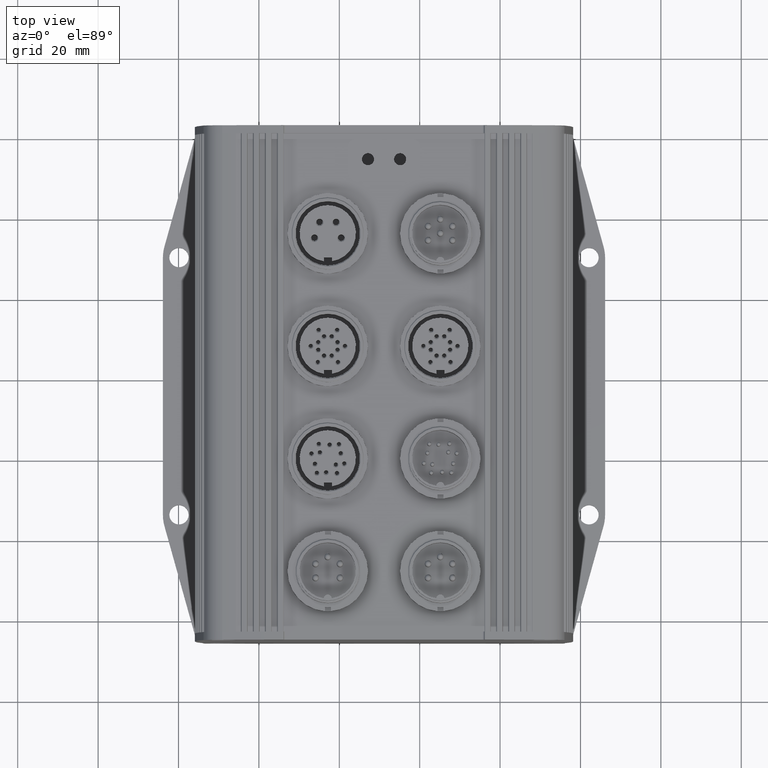
[diagram: clean part render]
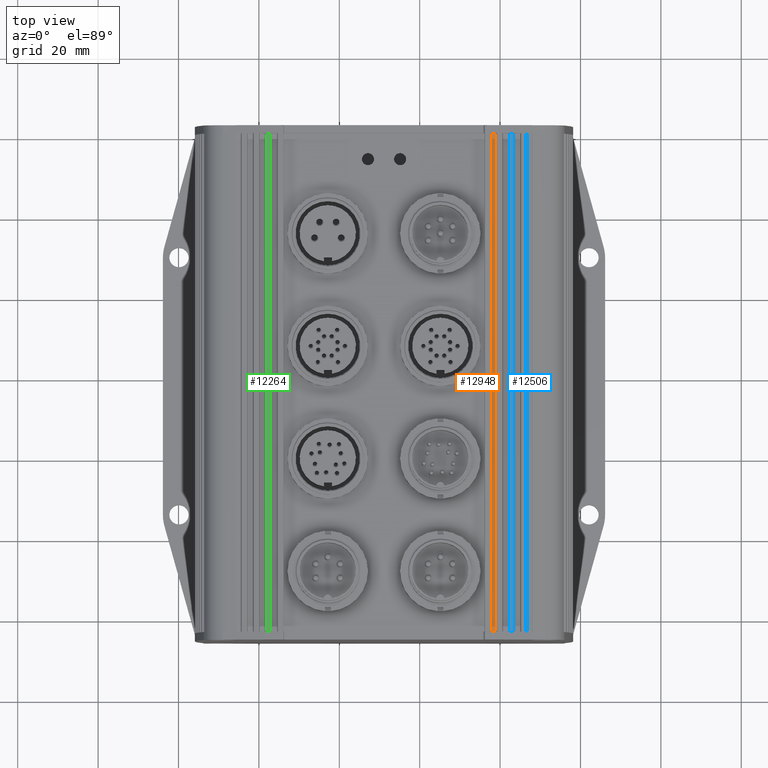
[diagram: same view with three faces highlighted in distinct colors, each labeled with its STEP entity id]
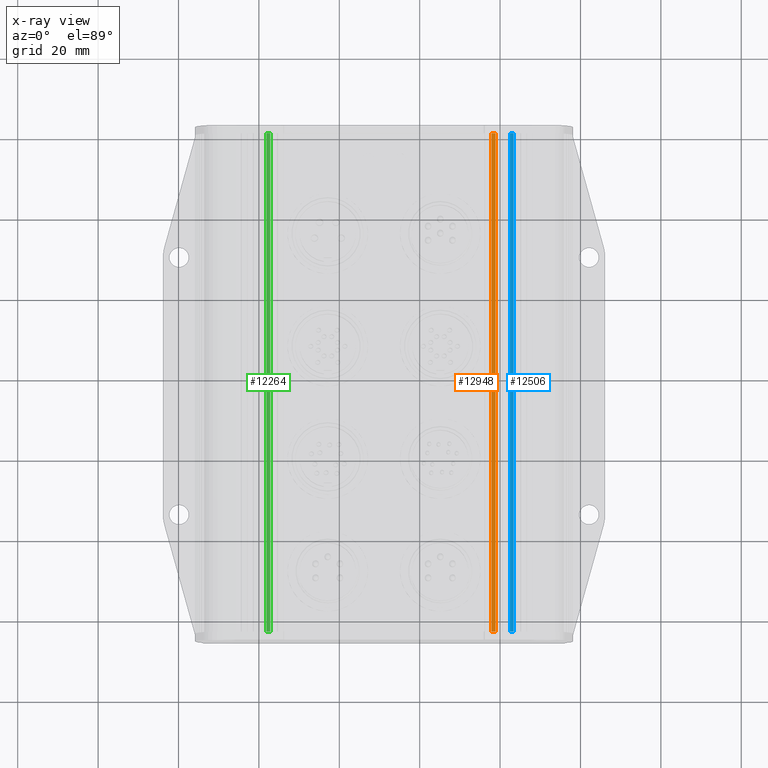
[diagram: x-ray of the same camera — body ghosted, the three highlighted faces saturated]
A machine part, top view with three faces highlighted in distinct colors.
The next image is the same camera in x-ray (body ghosted, the three faces saturated) — at least one of them is partly hidden behind the body in this view.
Their STEP definitions:

[orange] entity #12948 — the highlighted planar face has unit normal (0, 0, -1).
#4022=CARTESIAN_POINT('',(26.750000000000007,75.000000000000028,28.549533612553898));
#4023=VERTEX_POINT('',#4022);
#4031=CARTESIAN_POINT('',(27.750000000000007,75.000000000000028,28.549533612553898));
#4032=VERTEX_POINT('',#4031);
#4033=CARTESIAN_POINT('',(26.750000000000007,75.000000000000028,28.549533612553898));
#4034=DIRECTION('',(1.0,0.0,0.0));
#4035=VECTOR('',#4034,1.0);
#4036=LINE('',#4033,#4035);
#4037=EDGE_CURVE('',#4023,#4032,#4036,.T.);
#7054=CARTESIAN_POINT('',(27.750000000000007,-48.999999999999972,28.549533612553898));
#7055=VERTEX_POINT('',#7054);
#7063=CARTESIAN_POINT('',(26.750000000000007,-48.999999999999972,28.549533612553898));
#7064=VERTEX_POINT('',#7063);
#7065=CARTESIAN_POINT('',(27.750000000000007,-48.999999999999972,28.549533612553898));
#7066=DIRECTION('',(-1.0,0.0,0.0));
#7067=VECTOR('',#7066,1.0);
#7068=LINE('',#7065,#7067);
#7069=EDGE_CURVE('',#7055,#7064,#7068,.T.);
#12904=CARTESIAN_POINT('',(27.750000000000007,-48.999999999999972,28.549533612553898));
#12905=DIRECTION('',(0.0,1.0,0.0));
#12906=VECTOR('',#12905,124.0);
#12907=LINE('',#12904,#12906);
#12908=EDGE_CURVE('',#7055,#4032,#12907,.T.);
#12932=CARTESIAN_POINT('',(26.750000000000007,-48.999999999999972,28.549533612553898));
#12933=DIRECTION('',(0.0,0.0,-1.0));
#12934=DIRECTION('',(-1.0,0.0,0.0));
#12935=AXIS2_PLACEMENT_3D('',#12932,#12933,#12934);
#12936=PLANE('',#12935);
#12937=ORIENTED_EDGE('',*,*,#4037,.F.);
#12938=CARTESIAN_POINT('',(26.750000000000007,-48.999999999999972,28.549533612553898));
#12939=DIRECTION('',(0.0,1.0,0.0));
#12940=VECTOR('',#12939,124.0);
#12941=LINE('',#12938,#12940);
#12942=EDGE_CURVE('',#7064,#4023,#12941,.T.);
#12943=ORIENTED_EDGE('',*,*,#12942,.F.);
#12944=ORIENTED_EDGE('',*,*,#7069,.F.);
#12945=ORIENTED_EDGE('',*,*,#12908,.T.);
#12946=EDGE_LOOP('',(#12937,#12943,#12944,#12945));
#12947=FACE_OUTER_BOUND('',#12946,.T.);
#12948=ADVANCED_FACE('',(#12947),#12936,.F.);

[blue] entity #12506 — the highlighted cylindrical surface (partial cylindrical patch) has radius 200 mm, axis along (0, -1, 0).
#4125=CARTESIAN_POINT('',(31.289111389236552,75.0,29.586850361749271));
#4126=VERTEX_POINT('',#4125);
#4134=CARTESIAN_POINT('',(32.290362953692124,75.0,29.425652888212028));
#4135=VERTEX_POINT('',#4134);
#4136=CARTESIAN_POINT('',(0.0,75.0,-167.950466387446080));
#4137=DIRECTION('',(0.0,1.0,0.0));
#4138=DIRECTION('',(1.0,0.0,0.0));
#4139=AXIS2_PLACEMENT_3D('',#4136,#4137,#4138);
#4140=CIRCLE('',#4139,200.0);
#4141=EDGE_CURVE('',#4126,#4135,#4140,.T.);
#6950=CARTESIAN_POINT('',(32.290362953692124,-49.0,29.425652888212028));
#6951=VERTEX_POINT('',#6950);
#6959=CARTESIAN_POINT('',(31.289111389236552,-49.0,29.586850361749271));
#6960=VERTEX_POINT('',#6959);
#6961=CARTESIAN_POINT('',(0.0,-49.0,-167.950466387446080));
#6962=DIRECTION('',(0.0,1.0,0.0));
#6963=DIRECTION('',(1.0,0.0,0.0));
#6964=AXIS2_PLACEMENT_3D('',#6961,#6962,#6963);
#6965=CIRCLE('',#6964,200.0);
#6966=EDGE_CURVE('',#6960,#6951,#6965,.T.);
#12474=CARTESIAN_POINT('',(32.290362953692124,75.0,29.425652888212028));
#12475=DIRECTION('',(0.0,-1.0,0.0));
#12476=VECTOR('',#12475,124.0);
#12477=LINE('',#12474,#12476);
#12478=EDGE_CURVE('',#4135,#6951,#12477,.T.);
#12490=CARTESIAN_POINT('',(0.0,75.0,-167.950466387446080));
#12491=DIRECTION('',(0.0,-1.0,0.0));
#12492=DIRECTION('',(1.0,0.0,0.0));
#12493=AXIS2_PLACEMENT_3D('',#12490,#12491,#12492);
#12494=CYLINDRICAL_SURFACE('',#12493,200.0);
#12495=ORIENTED_EDGE('',*,*,#12478,.F.);
#12496=ORIENTED_EDGE('',*,*,#4141,.F.);
#12497=CARTESIAN_POINT('',(31.289111389236552,-49.0,29.586850361749271));
#12498=DIRECTION('',(0.0,1.0,0.0));
#12499=VECTOR('',#12498,124.0);
#12500=LINE('',#12497,#12499);
#12501=EDGE_CURVE('',#6960,#4126,#12500,.T.);
#12502=ORIENTED_EDGE('',*,*,#12501,.F.);
#12503=ORIENTED_EDGE('',*,*,#6966,.T.);
#12504=EDGE_LOOP('',(#12495,#12496,#12502,#12503));
#12505=FACE_OUTER_BOUND('',#12504,.T.);
#12506=ADVANCED_FACE('',(#12505),#12494,.T.);

[green] entity #12264 — the highlighted cylindrical surface (partial cylindrical patch) has radius 200 mm, axis along (0, -1, 0).
#3867=CARTESIAN_POINT('',(-29.286608260325401,75.0,29.893650473799624));
#3868=VERTEX_POINT('',#3867);
#3876=CARTESIAN_POINT('',(-28.285356695869819,75.0,30.039277277692833));
#3877=VERTEX_POINT('',#3876);
#3878=CARTESIAN_POINT('',(0.0,75.0,-167.950466387446080));
#3879=DIRECTION('',(0.0,1.0,0.0));
#3880=DIRECTION('',(1.0,0.0,0.0));
#3881=AXIS2_PLACEMENT_3D('',#3878,#3879,#3880);
#3882=CIRCLE('',#3881,200.0);
#3883=EDGE_CURVE('',#3868,#3877,#3882,.T.);
#7208=CARTESIAN_POINT('',(-28.285356695869819,-49.0,30.039277277692833));
#7209=VERTEX_POINT('',#7208);
#7217=CARTESIAN_POINT('',(-29.286608260325401,-49.0,29.893650473799624));
#7218=VERTEX_POINT('',#7217);
#7219=CARTESIAN_POINT('',(0.0,-49.0,-167.950466387446080));
#7220=DIRECTION('',(0.0,1.0,0.0));
#7221=DIRECTION('',(1.0,0.0,0.0));
#7222=AXIS2_PLACEMENT_3D('',#7219,#7220,#7221);
#7223=CIRCLE('',#7222,200.0);
#7224=EDGE_CURVE('',#7218,#7209,#7223,.T.);
#12232=CARTESIAN_POINT('',(-28.285356695869819,75.0,30.039277277692833));
#12233=DIRECTION('',(0.0,-1.0,0.0));
#12234=VECTOR('',#12233,124.0);
#12235=LINE('',#12232,#12234);
#12236=EDGE_CURVE('',#3877,#7209,#12235,.T.);
#12248=CARTESIAN_POINT('',(0.0,75.0,-167.950466387446080));
#12249=DIRECTION('',(0.0,-1.0,0.0));
#12250=DIRECTION('',(1.0,0.0,0.0));
#12251=AXIS2_PLACEMENT_3D('',#12248,#12249,#12250);
#12252=CYLINDRICAL_SURFACE('',#12251,200.0);
#12253=ORIENTED_EDGE('',*,*,#12236,.F.);
#12254=ORIENTED_EDGE('',*,*,#3883,.F.);
#12255=CARTESIAN_POINT('',(-29.286608260325401,-49.0,29.893650473799624));
#12256=DIRECTION('',(0.0,1.0,0.0));
#12257=VECTOR('',#12256,124.0);
#12258=LINE('',#12255,#12257);
#12259=EDGE_CURVE('',#7218,#3868,#12258,.T.);
#12260=ORIENTED_EDGE('',*,*,#12259,.F.);
#12261=ORIENTED_EDGE('',*,*,#7224,.T.);
#12262=EDGE_LOOP('',(#12253,#12254,#12260,#12261));
#12263=FACE_OUTER_BOUND('',#12262,.T.);
#12264=ADVANCED_FACE('',(#12263),#12252,.T.);